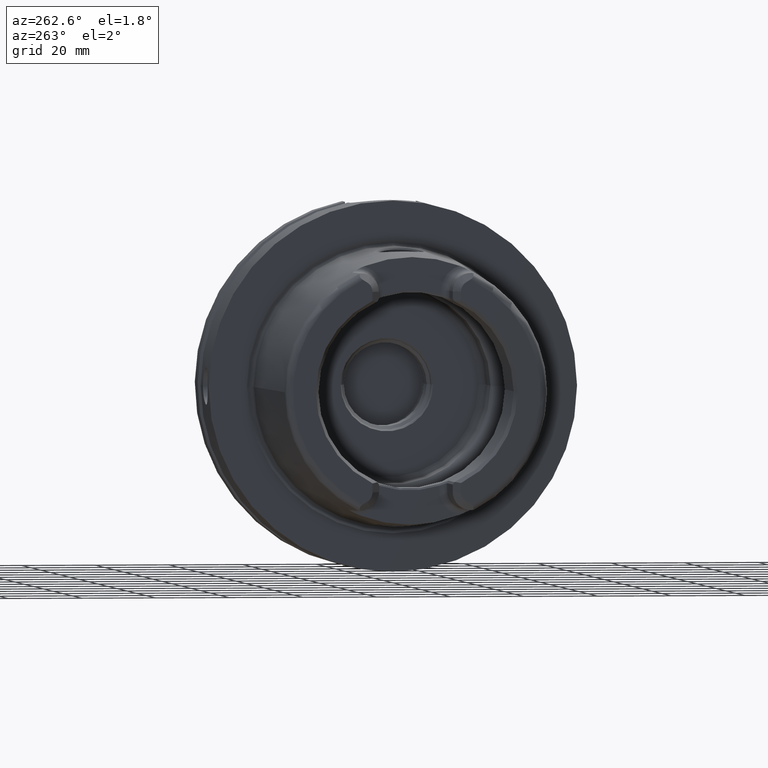
[diagram: clean part render]
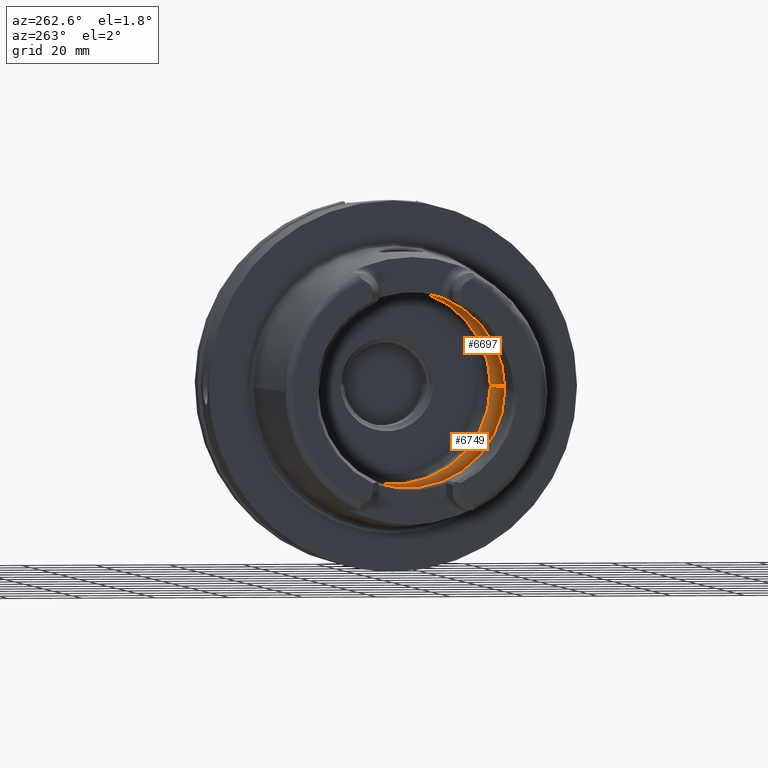
[diagram: same view with one multi-face feature highlighted, each face labeled with its STEP entity id]
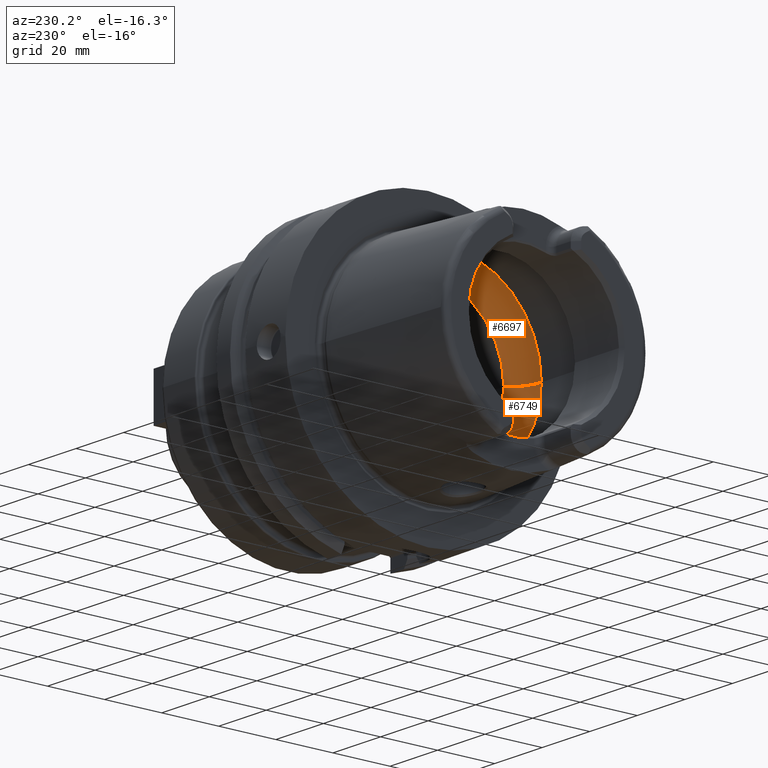
[diagram: same view with one multi-face feature highlighted, each face labeled with its STEP entity id]
A machine part, auxiliary view. The highlighted faces form ONE feature: a constant-radius fillet chain: 2 tangent blend faces with common blend radius 12 mm. The faces share edges in the B-rep.
A second angle (auxiliary view) of the same feature is appended — it is thin or edge-on in the first view.
Their STEP definitions:
[1] entity #6749 (Torus):
#2537=CARTESIAN_POINT('',(-9.846794344809E0,0.E0,0.E0));
#2538=DIRECTION('',(-1.E0,0.E0,0.E0));
#2539=DIRECTION('',(0.E0,-9.756145662299E-2,-9.952295022665E-1));
#2540=AXIS2_PLACEMENT_3D('',#2537,#2538,#2539);
#2550=CARTESIAN_POINT('',(-9.846794344809E0,0.E0,0.E0));
#2551=DIRECTION('',(-1.E0,0.E0,0.E0));
#2552=DIRECTION('',(0.E0,1.E0,0.E0));
#2553=AXIS2_PLACEMENT_3D('',#2550,#2551,#2552);
#2555=CARTESIAN_POINT('',(-9.846794344809E0,3.073185883624E0,
-3.134972932139E1));
#2556=CARTESIAN_POINT('',(-9.738537060689E0,2.891656984993E0,
-3.136752443672E1));
#2557=CARTESIAN_POINT('',(-9.539962893717E0,2.515101251431E0,
-3.139831839188E1));
#2558=CARTESIAN_POINT('',(-9.301049424477E0,1.913783257480E0,
-3.143197673752E1));
#2559=CARTESIAN_POINT('',(-9.127438432729E0,1.286303015996E0,
-3.145454039544E1));
#2560=CARTESIAN_POINT('',(-9.022899506342E0,6.437010581526E-1,
-3.146736051152E1));
#2561=CARTESIAN_POINT('',(-9.E0,2.141354428497E-1,-3.147008518506E1));
#2562=CARTESIAN_POINT('',(-9.E0,0.E0,-3.147008518506E1));
#2564=CARTESIAN_POINT('',(-9.846794344809E0,1.95E1,0.E0));
#2565=DIRECTION('',(0.E0,0.E0,1.E0));
#2566=DIRECTION('',(8.122328620674E-1,5.833333333333E-1,0.E0));
#2567=AXIS2_PLACEMENT_3D('',#2564,#2565,#2566);
#2569=CARTESIAN_POINT('',(-1.E-1,0.E0,0.E0));
#2570=DIRECTION('',(-1.E0,0.E0,0.E0));
#2571=DIRECTION('',(0.E0,1.E0,0.E0));
#2572=AXIS2_PLACEMENT_3D('',#2569,#2570,#2571);
#2574=CARTESIAN_POINT('',(-9.846794344809E0,-1.95E1,0.E0));
#2575=DIRECTION('',(0.E0,0.E0,-1.E0));
#2576=DIRECTION('',(8.122328620674E-1,-5.833333333333E-1,0.E0));
#2577=AXIS2_PLACEMENT_3D('',#2574,#2575,#2576);
#2579=CARTESIAN_POINT('',(-9.E0,0.E0,-3.147008518506E1));
#2580=CARTESIAN_POINT('',(-9.E0,-2.140673862591E-1,-3.147008518506E1));
#2581=CARTESIAN_POINT('',(-9.022884475739E0,-6.435227636510E-1,
-3.146736230982E1));
#2582=CARTESIAN_POINT('',(-9.127385021154E0,-1.286046048393E0,
-3.145454700706E1));
#2583=CARTESIAN_POINT('',(-9.300956096822E0,-1.913519178713E0,
-3.143198945276E1));
#2584=CARTESIAN_POINT('',(-9.539929943663E0,-2.515045104426E0,
-3.139832356097E1));
#2585=CARTESIAN_POINT('',(-9.738527185842E0,-2.891640426569E0,
-3.136752605993E1));
#2586=CARTESIAN_POINT('',(-9.846794344809E0,-3.073185883624E0,
-3.134972932139E1));
#3079=CARTESIAN_POINT('',(-1.E-1,2.65E1,0.E0));
#3080=VERTEX_POINT('',#3079);
#3081=CARTESIAN_POINT('',(-9.846794344809E0,3.15E1,0.E0));
#3082=VERTEX_POINT('',#3081);
#3091=CARTESIAN_POINT('',(-1.E-1,-2.65E1,0.E0));
#3092=VERTEX_POINT('',#3091);
#3093=CARTESIAN_POINT('',(-9.846794344809E0,-3.15E1,0.E0));
#3094=VERTEX_POINT('',#3093);
#3264=VERTEX_POINT('',#2555);
#3265=VERTEX_POINT('',#2562);
#3266=VERTEX_POINT('',#2586);
#6734=CARTESIAN_POINT('',(-9.846794344809E0,0.E0,0.E0));
#6735=DIRECTION('',(1.E0,0.E0,0.E0));
#6736=DIRECTION('',(0.E0,-1.E0,0.E0));
#6737=AXIS2_PLACEMENT_3D('',#6734,#6735,#6736);
#6738=TOROIDAL_SURFACE('',#6737,1.95E1,1.2E1);
#6739=ORIENTED_EDGE('',*,*,#6672,.F.);
#6740=ORIENTED_EDGE('',*,*,#6729,.F.);
#6741=ORIENTED_EDGE('',*,*,#6691,.F.);
#6743=ORIENTED_EDGE('',*,*,#6742,.T.);
#6744=ORIENTED_EDGE('',*,*,#6687,.T.);
#6745=ORIENTED_EDGE('',*,*,#6723,.F.);
#6746=ORIENTED_EDGE('',*,*,#6396,.F.);
#6747=EDGE_LOOP('',(#6739,#6740,#6741,#6743,#6744,#6745,#6746));
#6748=FACE_OUTER_BOUND('',#6747,.F.);
#6749=ADVANCED_FACE('',(#6748),#6738,.F.);
#2541=CIRCLE('',#2540,3.15E1);
#2554=CIRCLE('',#2553,3.15E1);
#2563=B_SPLINE_CURVE_WITH_KNOTS('',3,(#2555,#2556,#2557,#2558,#2559,#2560,#2561,
#2562),.UNSPECIFIED.,.F.,.F.,(4,1,1,1,1,4),(0.E0,2.E-1,4.E-1,6.E-1,8.E-1,1.E0),
.UNSPECIFIED.);
#2568=CIRCLE('',#2567,1.2E1);
#2573=CIRCLE('',#2572,2.65E1);
#2578=CIRCLE('',#2577,1.2E1);
#2587=B_SPLINE_CURVE_WITH_KNOTS('',3,(#2579,#2580,#2581,#2582,#2583,#2584,#2585,
#2586),.UNSPECIFIED.,.F.,.F.,(4,1,1,1,1,4),(0.E0,2.E-1,4.E-1,6.E-1,8.E-1,1.E0),
.UNSPECIFIED.);
#6396=EDGE_CURVE('',#3265,#3266,#2587,.T.);
#6672=EDGE_CURVE('',#3264,#3265,#2563,.T.);
#6687=EDGE_CURVE('',#3092,#3094,#2578,.T.);
#6691=EDGE_CURVE('',#3080,#3082,#2568,.T.);
#6723=EDGE_CURVE('',#3266,#3094,#2541,.T.);
#6729=EDGE_CURVE('',#3082,#3264,#2554,.T.);
#6742=EDGE_CURVE('',#3080,#3092,#2573,.T.);
[2] entity #6697 (Torus):
#2408=CARTESIAN_POINT('',(-9.E0,0.E0,3.147008518506E1));
#2409=CARTESIAN_POINT('',(-9.E0,2.141252053900E-1,3.147008518506E1));
#2410=CARTESIAN_POINT('',(-9.022897579641E0,6.436731047292E-1,
3.146736073712E1));
#2411=CARTESIAN_POINT('',(-9.127427069178E0,1.286248325661E0,3.145454181001E1));
#2412=CARTESIAN_POINT('',(-9.301031145484E0,1.913730198969E0,3.143197920586E1));
#2413=CARTESIAN_POINT('',(-9.539946842554E0,2.515068696018E0,3.139832080387E1));
#2414=CARTESIAN_POINT('',(-9.738529982809E0,2.891645116602E0,3.136752560017E1));
#2415=CARTESIAN_POINT('',(-9.846794344809E0,3.073185883624E0,3.134972932139E1));
#2417=CARTESIAN_POINT('',(-9.846794344809E0,-3.073185883624E0,
3.134972932139E1));
#2418=CARTESIAN_POINT('',(-9.738534471789E0,-2.891652643851E0,
3.136752486228E1));
#2419=CARTESIAN_POINT('',(-9.539946477828E0,-2.515078628379E0,
3.139832107651E1));
#2420=CARTESIAN_POINT('',(-9.300974895981E0,-1.913573808680E0,
3.143198691417E1));
#2421=CARTESIAN_POINT('',(-9.127396838585E0,-1.286102505522E0,
3.145454553504E1));
#2422=CARTESIAN_POINT('',(-9.022886850943E0,-6.435548392987E-1,
3.146736203025E1));
#2423=CARTESIAN_POINT('',(-9.E0,-2.140793620984E-1,3.147008518506E1));
#2424=CARTESIAN_POINT('',(-9.E0,0.E0,3.147008518506E1));
#2426=CARTESIAN_POINT('',(-1.E-1,0.E0,0.E0));
#2427=DIRECTION('',(1.E0,0.E0,0.E0));
#2428=DIRECTION('',(0.E0,1.E0,0.E0));
#2429=AXIS2_PLACEMENT_3D('',#2426,#2427,#2428);
#2455=CARTESIAN_POINT('',(-9.846794344809E0,0.E0,0.E0));
#2456=DIRECTION('',(1.E0,0.E0,0.E0));
#2457=DIRECTION('',(0.E0,1.E0,0.E0));
#2458=AXIS2_PLACEMENT_3D('',#2455,#2456,#2457);
#2460=CARTESIAN_POINT('',(-9.846794344809E0,0.E0,0.E0));
#2461=DIRECTION('',(1.E0,0.E0,0.E0));
#2462=DIRECTION('',(0.E0,-9.756145662299E-2,9.952295022665E-1));
#2463=AXIS2_PLACEMENT_3D('',#2460,#2461,#2462);
#2564=CARTESIAN_POINT('',(-9.846794344809E0,1.95E1,0.E0));
#2565=DIRECTION('',(0.E0,0.E0,1.E0));
#2566=DIRECTION('',(8.122328620674E-1,5.833333333333E-1,0.E0));
#2567=AXIS2_PLACEMENT_3D('',#2564,#2565,#2566);
#2574=CARTESIAN_POINT('',(-9.846794344809E0,-1.95E1,0.E0));
#2575=DIRECTION('',(0.E0,0.E0,-1.E0));
#2576=DIRECTION('',(8.122328620674E-1,-5.833333333333E-1,0.E0));
#2577=AXIS2_PLACEMENT_3D('',#2574,#2575,#2576);
#3079=CARTESIAN_POINT('',(-1.E-1,2.65E1,0.E0));
#3080=VERTEX_POINT('',#3079);
#3081=CARTESIAN_POINT('',(-9.846794344809E0,3.15E1,0.E0));
#3082=VERTEX_POINT('',#3081);
#3091=CARTESIAN_POINT('',(-1.E-1,-2.65E1,0.E0));
#3092=VERTEX_POINT('',#3091);
#3093=CARTESIAN_POINT('',(-9.846794344809E0,-3.15E1,0.E0));
#3094=VERTEX_POINT('',#3093);
#3260=VERTEX_POINT('',#2408);
#3261=VERTEX_POINT('',#2415);
#3262=VERTEX_POINT('',#2417);
#6678=CARTESIAN_POINT('',(-9.846794344809E0,0.E0,0.E0));
#6679=DIRECTION('',(1.E0,0.E0,0.E0));
#6680=DIRECTION('',(0.E0,-1.E0,0.E0));
#6681=AXIS2_PLACEMENT_3D('',#6678,#6679,#6680);
#6682=TOROIDAL_SURFACE('',#6681,1.95E1,1.2E1);
#6683=ORIENTED_EDGE('',*,*,#6655,.F.);
#6684=ORIENTED_EDGE('',*,*,#6381,.F.);
#6686=ORIENTED_EDGE('',*,*,#6685,.T.);
#6688=ORIENTED_EDGE('',*,*,#6687,.F.);
#6690=ORIENTED_EDGE('',*,*,#6689,.F.);
#6692=ORIENTED_EDGE('',*,*,#6691,.T.);
#6694=ORIENTED_EDGE('',*,*,#6693,.T.);
#6695=EDGE_LOOP('',(#6683,#6684,#6686,#6688,#6690,#6692,#6694));
#6696=FACE_OUTER_BOUND('',#6695,.F.);
#6697=ADVANCED_FACE('',(#6696),#6682,.F.);
#2416=B_SPLINE_CURVE_WITH_KNOTS('',3,(#2408,#2409,#2410,#2411,#2412,#2413,#2414,
#2415),.UNSPECIFIED.,.F.,.F.,(4,1,1,1,1,4),(0.E0,2.E-1,4.E-1,6.E-1,8.E-1,1.E0),
.UNSPECIFIED.);
#2425=B_SPLINE_CURVE_WITH_KNOTS('',3,(#2417,#2418,#2419,#2420,#2421,#2422,#2423,
#2424),.UNSPECIFIED.,.F.,.F.,(4,1,1,1,1,4),(0.E0,2.E-1,4.E-1,6.E-1,8.E-1,1.E0),
.UNSPECIFIED.);
#2430=CIRCLE('',#2429,2.65E1);
#2459=CIRCLE('',#2458,3.15E1);
#2464=CIRCLE('',#2463,3.15E1);
#2568=CIRCLE('',#2567,1.2E1);
#2578=CIRCLE('',#2577,1.2E1);
#6381=EDGE_CURVE('',#3262,#3260,#2425,.T.);
#6655=EDGE_CURVE('',#3260,#3261,#2416,.T.);
#6685=EDGE_CURVE('',#3262,#3094,#2464,.T.);
#6687=EDGE_CURVE('',#3092,#3094,#2578,.T.);
#6689=EDGE_CURVE('',#3080,#3092,#2430,.T.);
#6691=EDGE_CURVE('',#3080,#3082,#2568,.T.);
#6693=EDGE_CURVE('',#3082,#3261,#2459,.T.);